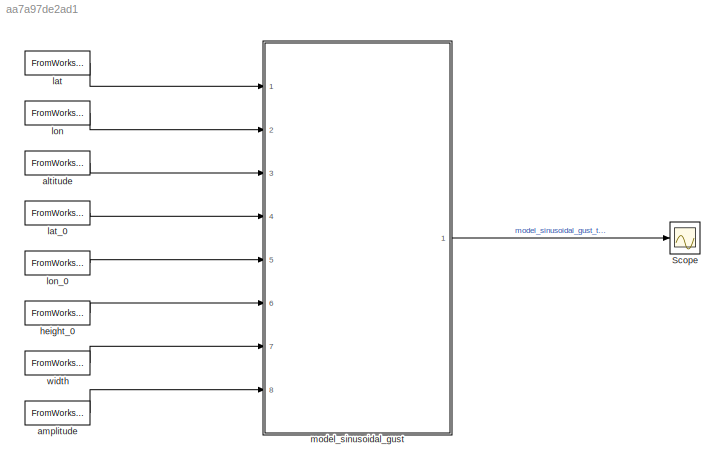
MODEL slx_aa7a97de2ad1
KIND model
BLOCK [Scope] Scope
  Floating = off
  NumInputPorts = 1
  Ports = [1]
  ScopeSpecificationString = Simulink.scopes.TimeScopeBlockCfg('CurrentConfiguration', extmgr.ConfigurationSet(extmgr.Configuration('Core','General UI',true),extmgr.Configuration('Core','Source UI',true),extmgr.Configuration('Sources','WiredSimulink',true),extmgr.Configuration('Visuals','Time Domain',true),extmgr.Configuration('Tools','Plot Navigation',true),extmgr.Configuration('Tools','Measurements',true)),'Version','2020b'...<+1ch>
BLOCK [FromWorkspace] altitude
  VariableName = alt
BLOCK [FromWorkspace] amplitude
  VariableName = amplitude
BLOCK [FromWorkspace] height_0
  VariableName = alt_0
BLOCK [FromWorkspace] lat
  VariableName = lat
BLOCK [FromWorkspace] lat_0
  VariableName = lat_0
BLOCK [FromWorkspace] lon
  VariableName = lon
BLOCK [FromWorkspace] lon_0
  VariableName = lon_0
BLOCK [ModelReference] model_sinusoidal_gust
  ModelNameDialog = model_sinusoidal_gust.slx
  ModelReferenceVersion = 1.73
  Ports = [8, 1]
BLOCK [FromWorkspace] width
  VariableName = gust_width
LINE altitude:1 -> model_sinusoidal_gust:3
LINE amplitude:1 -> model_sinusoidal_gust:8
LINE height_0:1 -> model_sinusoidal_gust:6
LINE lat:1 -> model_sinusoidal_gust:1
LINE lat_0:1 -> model_sinusoidal_gust:4
LINE lon:1 -> model_sinusoidal_gust:2
LINE lon_0:1 -> model_sinusoidal_gust:5
LINE model_sinusoidal_gust:1 -> Scope:1
LINE width:1 -> model_sinusoidal_gust:7
